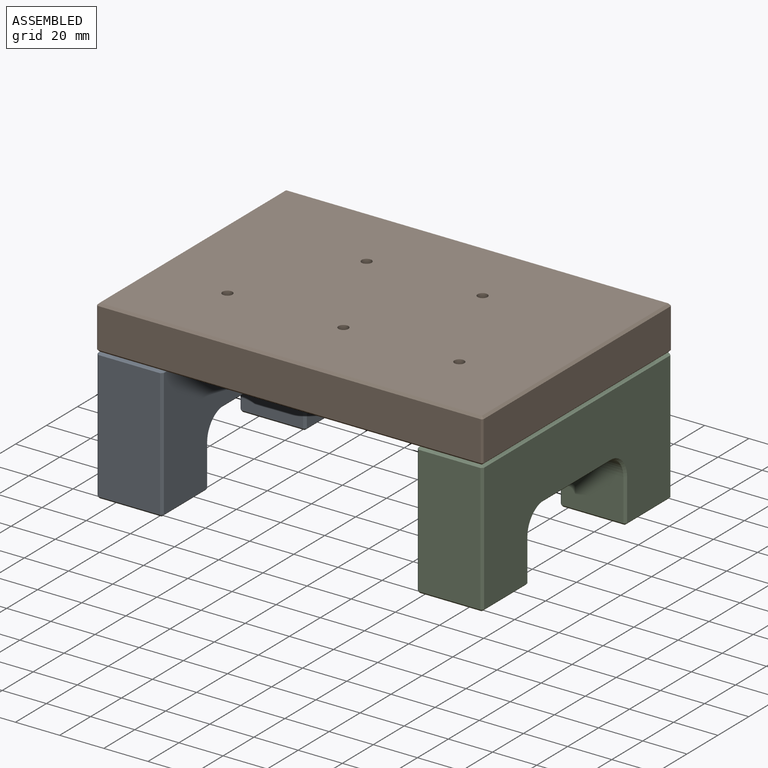
[diagram: assembled view]
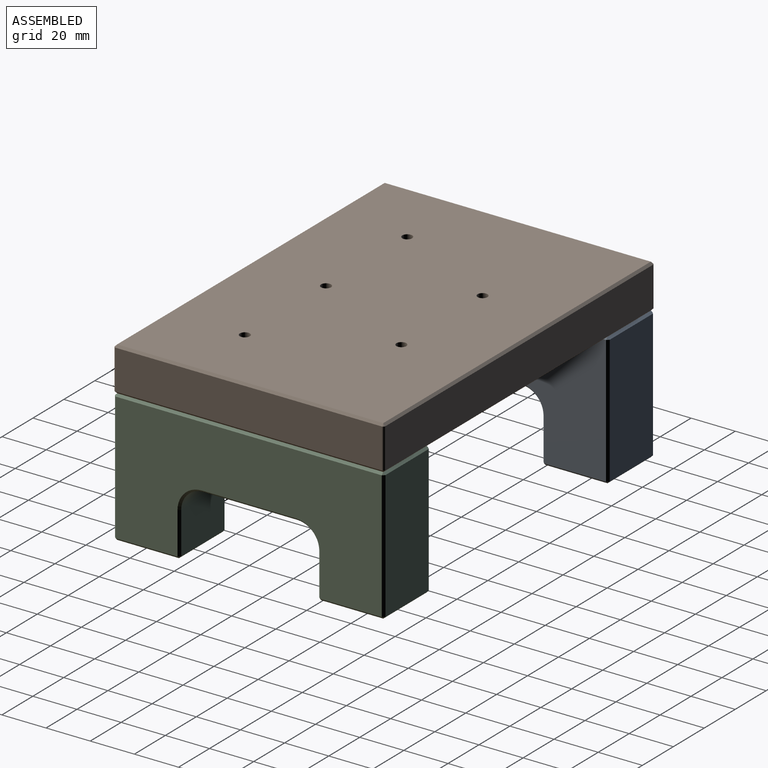
[diagram: assembled view, second angle]
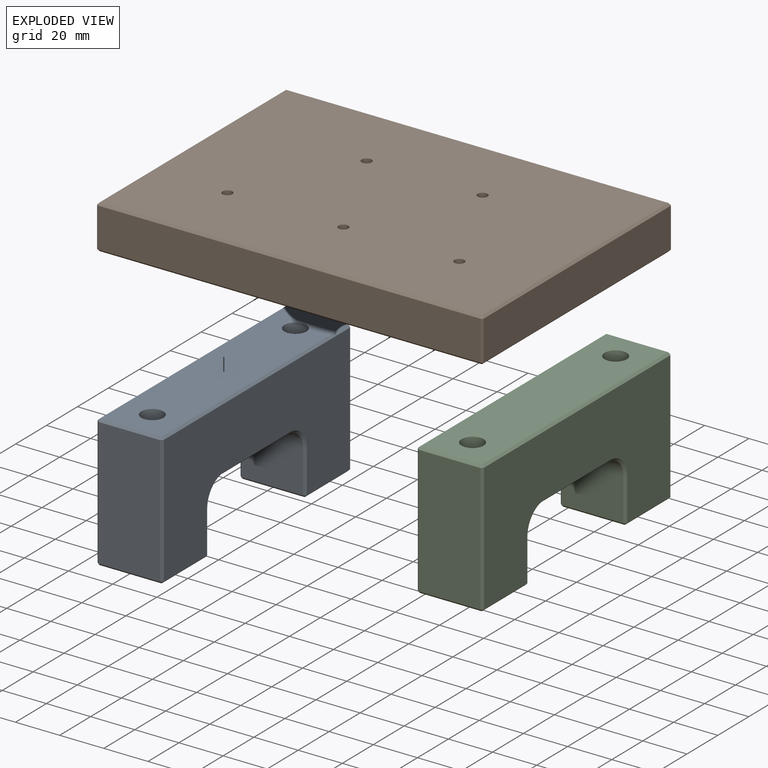
[diagram: exploded view]
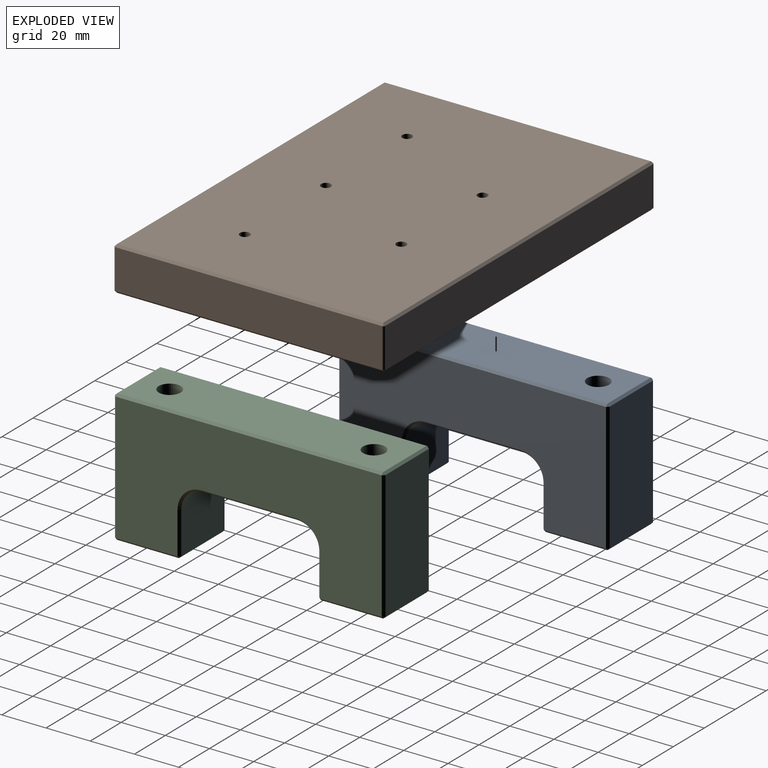
[diagram: exploded view, second angle]
ASSEMBLY  parts=3 mates=5
PART A: 54 faces, bbox 122.5x30x60 mm
  f0: plane 28x19mm, normal (-1,0,0), area 532mm2, adj f15,f21,f34,f44
  f1: plane 28x28mm, normal (0,0,-1), area 784mm2, adj f22,f23,f34,f35
  f2: plane 58x28mm, normal (1,0,0), area 1624mm2, adj f16,f19,f23,f24
  f3: plane 120.5x28mm, normal (0,0,1), area 3216.9mm2, adj f10,f12,f19,f20,f30,f31
  f4: plane 58x28mm, normal (-1,0,0), area 1624mm2, adj f31,f32,f40,f41
  f5: plane 28x28mm, normal (0,0,-1), area 784mm2, adj f41,f42,f48,f49
  f6: plane 28x19mm, normal (1,0,0), area 532mm2, adj f14,f43,f49,f53
  f7: plane 42.5x28mm, normal (0,0,-1), area 1190mm2, adj f14,f15,f33,f50
  f8: plane 120.5x58mm, normal (0,-1,0), area 5105.9mm2, adj f16,f20,f21,f22,f27,f32,f33,f38
  f9: plane 120.5x58mm, normal (0,1,0), area 5105.9mm2, adj f24,f30,f35,f40,f44,f47,f48,f50
  f10: cylinder r=5mm len=12mm, axis (0,0,1), area 377mm2, adj f3,f11
  f11: plane 10x10mm, normal (0,0,1), area 78.5mm2, adj f10
  f12: cylinder r=5mm len=12mm, axis (0,0,1), area 377mm2, adj f3,f13
  f13: plane 10x10mm, normal (0,0,1), area 78.5mm2, adj f12
  f14: cylinder r=10mm len=28mm, axis (0,-1,0), area 439.8mm2, adj f6,f7,f38,f52
  f15: cylinder r=10mm len=28mm, axis (0,-1,0), area 439.8mm2, adj f0,f7,f27,f47
  f16: plane 58x1mm, normal (0.71,-0.71,0), area 82mm2, adj f2,f8,f17,f18
  f17: plane 1x1mm, normal (0.58,-0.58,0.58), area 0.9mm2, adj f16,f19,f20
  f18: plane 1x1mm, normal (0.58,-0.58,-0.58), area 0.9mm2, adj f16,f22,f23
  f19: plane 28x1mm, normal (0.71,0,0.71), area 39.6mm2, adj f2,f3,f17,f25
  f20: plane 120.5x1mm, normal (0,-0.71,0.71), area 170.4mm2, adj f3,f8,f17,f26
  f21: plane 19x1mm, normal (-0.71,-0.71,0), area 26.9mm2, adj f0,f8,f27,f28
  f22: plane 28x1mm, normal (0,-0.71,-0.71), area 39.6mm2, adj f1,f8,f18,f28
  f23: plane 28x1mm, normal (0.71,0,-0.71), area 39.6mm2, adj f1,f2,f18,f29
  f24: plane 58x1mm, normal (0.71,0.71,0), area 82mm2, adj f2,f9,f25,f29
  f25: plane 1x1mm, normal (0.58,0.58,0.58), area 0.9mm2, adj f19,f24,f30
  f26: plane 1x1mm, normal (-0.58,-0.58,0.58), area 0.9mm2, adj f20,f31,f32
  f27: cone r=11mm half-angle=45deg, axis (0,-1,0), area 23.3mm2, adj f8,f15,f21,f33
  f28: plane 1x1mm, normal (-0.58,-0.58,-0.58), area 0.9mm2, adj f21,f22,f34
  f29: plane 1x1mm, normal (0.58,0.58,-0.58), area 0.9mm2, adj f23,f24,f35
  f30: plane 120.5x1mm, normal (0,0.71,0.71), area 170.4mm2, adj f3,f9,f25,f36
  f31: plane 28x1mm, normal (-0.71,0,0.71), area 39.6mm2, adj f3,f4,f26,f36
  f32: plane 58x1mm, normal (-0.71,-0.71,0), area 82mm2, adj f4,f8,f26,f37
  f33: plane 42.5x1mm, normal (0,-0.71,-0.71), area 60.1mm2, adj f7,f8,f27,f38
  f34: plane 28x1mm, normal (-0.71,0,-0.71), area 39.6mm2, adj f0,f1,f28,f39
  f35: plane 28x1mm, normal (0,0.71,-0.71), area 39.6mm2, adj f1,f9,f29,f39
  f36: plane 1x1mm, normal (-0.58,0.58,0.58), area 0.9mm2, adj f30,f31,f40
  f37: plane 1x1mm, normal (-0.58,-0.58,-0.58), area 0.9mm2, adj f32,f41,f42
  f38: cone r=11mm half-angle=45deg, axis (0,-1,0), area 23.3mm2, adj f8,f14,f33,f43
  f39: plane 1x1mm, normal (-0.58,0.58,-0.58), area 0.9mm2, adj f34,f35,f44
  f40: plane 58x1mm, normal (-0.71,0.71,0), area 82mm2, adj f4,f9,f36,f45
  f41: plane 28x1mm, normal (-0.71,0,-0.71), area 39.6mm2, adj f4,f5,f37,f45
  f42: plane 28x1mm, normal (0,-0.71,-0.71), area 39.6mm2, adj f5,f8,f37,f46
  f43: plane 19x1mm, normal (0.71,-0.71,0), area 26.9mm2, adj f6,f8,f38,f46
  f44: plane 19x1mm, normal (-0.71,0.71,0), area 26.9mm2, adj f0,f9,f39,f47
  f45: plane 1x1mm, normal (-0.58,0.58,-0.58), area 0.9mm2, adj f40,f41,f48
  f46: plane 1x1mm, normal (0.58,-0.58,-0.58), area 0.9mm2, adj f42,f43,f49
  f47: cone r=11mm half-angle=45deg, axis (0,1,0), area 23.3mm2, adj f9,f15,f44,f50
  f48: plane 28x1mm, normal (0,0.71,-0.71), area 39.6mm2, adj f5,f9,f45,f51
  f49: plane 28x1mm, normal (0.71,0,-0.71), area 39.6mm2, adj f5,f6,f46,f51
  f50: plane 42.5x1mm, normal (0,0.71,-0.71), area 60.1mm2, adj f7,f9,f47,f52
  f51: plane 1x1mm, normal (0.58,0.58,-0.58), area 0.9mm2, adj f48,f49,f53
  f52: cone r=11mm half-angle=45deg, axis (0,1,0), area 23.3mm2, adj f9,f14,f50,f53
  f53: plane 19x1mm, normal (0.71,0.71,0), area 26.9mm2, adj f6,f9,f51,f52
PART B: 39 faces, bbox 175x122.5x20 mm
  f0: plane 120.5x18mm, normal (1,0,0), area 2169mm2, adj f14,f17,f24,f26
  f1: plane 173x18mm, normal (0,1,0), area 3114mm2, adj f14,f15,f20,f29
  f2: plane 120.5x18mm, normal (-1,0,0), area 2169mm2, adj f15,f16,f19,f33
  f3: plane 173x18mm, normal (0,-1,0), area 3114mm2, adj f16,f17,f23,f30
  f4: plane 173x120.5mm, normal (0,0,1), area 20452.8mm2, adj f7,f9,f11,f13,f19,f20,f23,f24
  f5: plane 173x120.5mm, normal (0,0,-1), area 20767mm2, adj f26,f29,f30,f33,f34,f35,f36,f37
  f6: cone r=0mm half-angle=59deg, axis (0,0,1), area 91.6mm2, adj f7
  f7: cylinder r=5mm len=12mm, axis (0,0,1), area 377mm2, adj f4,f6
  f8: cone r=0mm half-angle=59deg, axis (0,0,1), area 91.6mm2, adj f9
  f9: cylinder r=5mm len=12mm, axis (0,0,1), area 377mm2, adj f4,f8
  f10: cone r=0mm half-angle=59deg, axis (0,0,1), area 91.6mm2, adj f11
  f11: cylinder r=5mm len=12mm, axis (0,0,1), area 377mm2, adj f4,f10
  f12: cone r=0mm half-angle=59deg, axis (0,0,1), area 91.6mm2, adj f13
  f13: cylinder r=5mm len=12mm, axis (0,0,1), area 377mm2, adj f4,f12
  f14: cylinder r=1mm len=18mm, axis (0,0,1), area 28.3mm2, adj f0,f1,f22,f27
  f15: cylinder r=1mm len=18mm, axis (0,0,-1), area 28.3mm2, adj f1,f2,f18,f31
  f16: cylinder r=1mm len=18mm, axis (0,0,1), area 28.3mm2, adj f2,f3,f21,f32
  f17: cylinder r=1mm len=18mm, axis (0,0,-1), area 28.3mm2, adj f0,f3,f25,f28
  f18: cone r=1mm half-angle=45deg, axis (0,0,-1), area 1.1mm2, adj f15,f19,f20
  f19: plane 120.5x1mm, normal (-0.71,0,0.71), area 170.4mm2, adj f2,f4,f18,f21
  f20: plane 173x1mm, normal (0,0.71,0.71), area 244.7mm2, adj f1,f4,f18,f22
  f21: cone r=1mm half-angle=45deg, axis (0,0,-1), area 1.1mm2, adj f16,f19,f23
  f22: cone r=1mm half-angle=45deg, axis (0,0,-1), area 1.1mm2, adj f14,f20,f24
  f23: plane 173x1mm, normal (0,-0.71,0.71), area 244.7mm2, adj f3,f4,f21,f25
  f24: plane 120.5x1mm, normal (0.71,0,0.71), area 170.4mm2, adj f0,f4,f22,f25
  f25: cone r=1mm half-angle=45deg, axis (0,0,-1), area 1.1mm2, adj f17,f23,f24
  f26: plane 120.5x1mm, normal (0.71,0,-0.71), area 170.4mm2, adj f0,f5,f27,f28
  f27: cone r=1mm half-angle=45deg, axis (0,0,1), area 1.1mm2, adj f14,f26,f29
  f28: cone r=1mm half-angle=45deg, axis (0,0,1), area 1.1mm2, adj f17,f26,f30
  f29: plane 173x1mm, normal (0,0.71,-0.71), area 244.7mm2, adj f1,f5,f27,f31
  f30: plane 173x1mm, normal (0,-0.71,-0.71), area 244.7mm2, adj f3,f5,f28,f32
  f31: cone r=1mm half-angle=45deg, axis (0,0,1), area 1.1mm2, adj f15,f29,f33
  f32: cone r=1mm half-angle=45deg, axis (0,0,1), area 1.1mm2, adj f16,f30,f33
  f33: plane 120.5x1mm, normal (-0.71,0,-0.71), area 170.4mm2, adj f2,f5,f31,f32
  f34: cylinder r=2.25mm len=20mm, axis (0,0,-1), area 282.7mm2, adj f4,f5
  f35: cylinder r=2.25mm len=20mm, axis (0,0,-1), area 282.7mm2, adj f4,f5
  f36: cylinder r=2.25mm len=20mm, axis (0,0,-1), area 282.7mm2, adj f4,f5
  f37: cylinder r=2.25mm len=20mm, axis (0,0,-1), area 282.7mm2, adj f4,f5
  f38: cylinder r=2.25mm len=20mm, axis (0,0,-1), area 282.7mm2, adj f4,f5
PART C: same geometry as A
PLACE A rot(axis=(0,0,-1),90deg) t=(4.78,-23.66,-38.31)mm
PLACE B rot(axis=(0,-1,0),180deg) t=(77.28,-14.91,3.65)mm
PLACE C rot(axis=(0,0,1),90deg) t=(149.78,-6.16,-38.31)mm
MATE cylindrical C.f12 <-> B.f8  axis (0,0,1) through (149.78,-61.16,-6.35)mm
MATE cylindrical A.f12 <-> B.f12  axis (0,0,1) through (4.78,31.34,-6.35)mm
MATE parallel B.f8 <-> C.f12  axis (0,0,-1) through (149.78,-61.16,-6.35)mm
MATE cylindrical C.f10 <-> B.f6  axis (0,0,1) through (149.78,31.34,-6.35)mm
MATE cylindrical B.f10 <-> A.f10  axis (0,0,-1) through (4.78,-61.16,-6.35)mm
